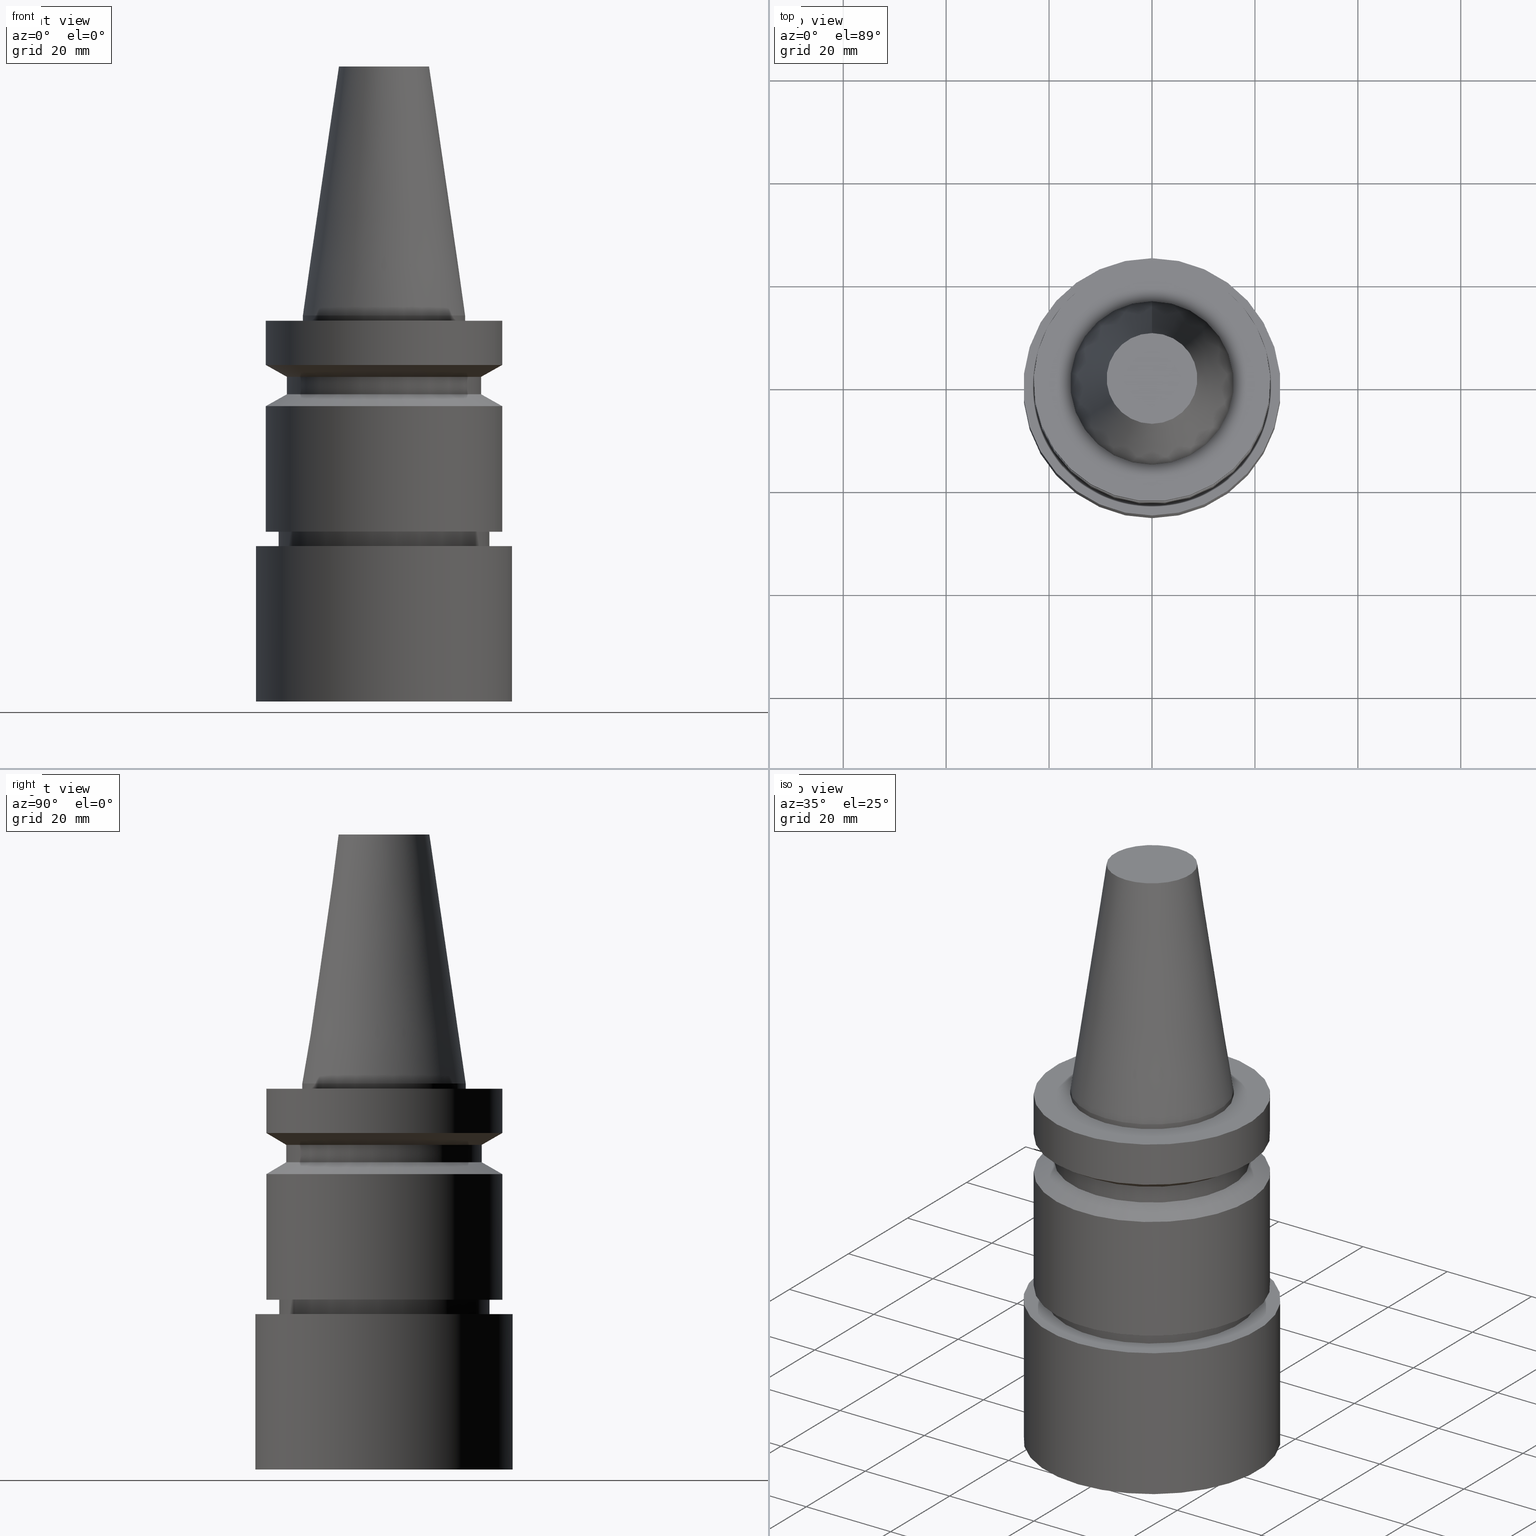
[diagram: canonical four-view strip — front | top / right | iso, engineering-drawing reading convention]
A machine part, canonical four-view strip (front | top / right | iso — engineering-drawing reading convention). The complete STEP part file that produces these views, byte-faithful:
ISO-10303-21;
HEADER;
FILE_DESCRIPTION((''),'1');
FILE_NAME('V:/90_\X2\53D65F9730C730FC30BF\X0\/00_\X2\6DE18DEF30C730FC30BF\X0\/ALL/BBT-BKUS\X2\FF76FF80FF9BFF78FF9E752852A05DE556F3\X0\201801/BBT30-MEGAER/BBT30-MEGAER32-75NL.stp','2018-02-02T07:32:38',(''),(''),'Spatial Interop R21 SP3','Kubotek KeyCreator 2011 V10.0.2 (22737)',' ');
FILE_SCHEMA(('automotive_design'));
ENDSEC;
DATA;
#1=MECHANICAL_DESIGN_GEOMETRIC_PRESENTATION_REPRESENTATION(' ',(#14,#15,#16,#17,#18,#19,#20,#21,#22,#23,#24,#25,#26,#27,#28,#29,#30,#31,#32,#33,#34,#35,#36,#37,#38,#39,#40,#41,#42,#43,#44,#45,#46,#47,#48,#49),#10);
#2=PRODUCT_DEFINITION_CONTEXT('',#50,'design');
#3=APPLICATION_PROTOCOL_DEFINITION('INTERNATIONAL STANDARD','automotive_design',1994,#50);
#4=PRODUCT_CATEGORY_RELATIONSHIP('NONE','NONE',#51,#52);
#5=SHAPE_DEFINITION_REPRESENTATION(#53,#54);
#6=PRODUCT_DEFINITION_CONTEXT('',#55,'design');
#7=APPLICATION_PROTOCOL_DEFINITION('INTERNATIONAL STANDARD','automotive_design',1994,#55);
#8=PRODUCT_CATEGORY_RELATIONSHIP('NONE','NONE',#56,#57);
#9=SHAPE_DEFINITION_REPRESENTATION(#58,#59);
#10= (GEOMETRIC_REPRESENTATION_CONTEXT(3)GLOBAL_UNCERTAINTY_ASSIGNED_CONTEXT((#62))GLOBAL_UNIT_ASSIGNED_CONTEXT((#64,#65,#66))REPRESENTATION_CONTEXT('NONE','WORKSPACE'));
#14=STYLED_ITEM('',(#68),#69);
#15=STYLED_ITEM('',(#70,#71),#72);
#16=STYLED_ITEM('',(#73),#74);
#17=STYLED_ITEM('',(#75,#76),#77);
#18=STYLED_ITEM('',(#78),#79);
#19=STYLED_ITEM('',(#80),#81);
#20=STYLED_ITEM('',(#82,#83),#84);
#21=STYLED_ITEM('',(#85,#86),#87);
#22=STYLED_ITEM('',(#88,#89),#90);
#23=STYLED_ITEM('',(#91),#92);
#24=STYLED_ITEM('',(#93),#94);
#25=STYLED_ITEM('',(#95),#96);
#26=STYLED_ITEM('',(#97),#98);
#27=STYLED_ITEM('',(#99,#100),#101);
#28=STYLED_ITEM('',(#102),#103);
#29=STYLED_ITEM('',(#104),#105);
#30=STYLED_ITEM('',(#106,#107),#108);
#31=STYLED_ITEM('',(#109),#110);
#32=STYLED_ITEM('',(#111),#112);
#33=STYLED_ITEM('',(#113,#114),#115);
#34=STYLED_ITEM('',(#116,#117),#118);
#35=STYLED_ITEM('',(#119,#120),#121);
#36=STYLED_ITEM('',(#122,#123),#124);
#37=STYLED_ITEM('',(#125,#126),#127);
#38=STYLED_ITEM('',(#128,#129),#130);
#39=STYLED_ITEM('',(#131,#132),#133);
#40=STYLED_ITEM('',(#134,#135),#136);
#41=STYLED_ITEM('',(#137),#138);
#42=STYLED_ITEM('',(#139,#140),#141);
#43=STYLED_ITEM('',(#142),#143);
#44=STYLED_ITEM('',(#144,#145),#146);
#45=STYLED_ITEM('',(#147),#148);
#46=STYLED_ITEM('',(#149,#150),#151);
#47=STYLED_ITEM('',(#152,#153),#154);
#48=STYLED_ITEM('',(#155),#156);
#49=STYLED_ITEM('',(#157,#158),#159);
#50=APPLICATION_CONTEXT(' ');
#51=PRODUCT_CATEGORY('part','NONE');
#52=PRODUCT_RELATED_PRODUCT_CATEGORY('detail',' ',(#160));
#53=PRODUCT_DEFINITION_SHAPE('NONE','NONE',#161);
#54=ADVANCED_BREP_SHAPE_REPRESENTATION('Unnamed[1]',(#154,#162),#10);
#55=APPLICATION_CONTEXT(' ');
#56=PRODUCT_CATEGORY('part','NONE');
#57=PRODUCT_RELATED_PRODUCT_CATEGORY('detail',' ',(#163));
#58=PRODUCT_DEFINITION_SHAPE('NONE','NONE',#164);
#59=ADVANCED_BREP_SHAPE_REPRESENTATION('Unnamed[1]',(#141,#165),#10);
#62=UNCERTAINTY_MEASURE_WITH_UNIT(LENGTH_MEASURE(1.0E-006),#64,'','');
#64= (CONVERSION_BASED_UNIT('MILLIMETRE',#168)LENGTH_UNIT()NAMED_UNIT(#171));
#65= (NAMED_UNIT(#173)PLANE_ANGLE_UNIT()SI_UNIT($,.RADIAN.));
#66= (NAMED_UNIT(#173)SOLID_ANGLE_UNIT()SI_UNIT($,.STERADIAN.));
#68=PRESENTATION_STYLE_ASSIGNMENT((#179));
#69=EDGE_CURVE('Unnamed[1]',#180,#180,#181,.T.);
#70=PRESENTATION_STYLE_ASSIGNMENT((#182));
#71=PRESENTATION_STYLE_ASSIGNMENT((#183));
#72=ADVANCED_FACE('Unnamed[1]',(#184,#185),#186,.T.);
#73=PRESENTATION_STYLE_ASSIGNMENT((#187));
#74=EDGE_CURVE('Unnamed[1]',#188,#188,#189,.T.);
#75=PRESENTATION_STYLE_ASSIGNMENT((#190));
#76=PRESENTATION_STYLE_ASSIGNMENT((#191));
#77=ADVANCED_FACE('Unnamed[1]',(#192,#193),#194,.T.);
#78=PRESENTATION_STYLE_ASSIGNMENT((#195));
#79=EDGE_CURVE('Unnamed[1]',#196,#196,#197,.T.);
#80=PRESENTATION_STYLE_ASSIGNMENT((#198));
#81=EDGE_CURVE('Unnamed[1]',#199,#199,#200,.T.);
#82=PRESENTATION_STYLE_ASSIGNMENT((#201));
#83=PRESENTATION_STYLE_ASSIGNMENT((#202));
#84=ADVANCED_FACE('Unnamed[1]',(#203),#204,.T.);
#85=PRESENTATION_STYLE_ASSIGNMENT((#205));
#86=PRESENTATION_STYLE_ASSIGNMENT((#206));
#87=ADVANCED_FACE('Unnamed[1]',(#207,#208),#209,.T.);
#88=PRESENTATION_STYLE_ASSIGNMENT((#210));
#89=PRESENTATION_STYLE_ASSIGNMENT((#211));
#90=ADVANCED_FACE('Unnamed[1]',(#212,#213),#214,.T.);
#91=PRESENTATION_STYLE_ASSIGNMENT((#215));
#92=EDGE_CURVE('Unnamed[1]',#216,#216,#217,.T.);
#93=PRESENTATION_STYLE_ASSIGNMENT((#218));
#94=EDGE_CURVE('Unnamed[1]',#219,#219,#220,.T.);
#95=PRESENTATION_STYLE_ASSIGNMENT((#221));
#96=EDGE_CURVE('Unnamed[1]',#222,#222,#223,.T.);
#97=PRESENTATION_STYLE_ASSIGNMENT((#224));
#98=EDGE_CURVE('Unnamed[1]',#225,#225,#226,.T.);
#99=PRESENTATION_STYLE_ASSIGNMENT((#227));
#100=PRESENTATION_STYLE_ASSIGNMENT((#228));
#101=ADVANCED_FACE('Unnamed[1]',(#229,#230),#231,.T.);
#102=PRESENTATION_STYLE_ASSIGNMENT((#232));
#103=EDGE_CURVE('Unnamed[1]',#233,#233,#234,.T.);
#104=PRESENTATION_STYLE_ASSIGNMENT((#235));
#105=EDGE_CURVE('Unnamed[1]',#236,#236,#237,.T.);
#106=PRESENTATION_STYLE_ASSIGNMENT((#238));
#107=PRESENTATION_STYLE_ASSIGNMENT((#239));
#108=ADVANCED_FACE('Unnamed[1]',(#240,#241),#242,.T.);
#109=PRESENTATION_STYLE_ASSIGNMENT((#243));
#110=EDGE_CURVE('Unnamed[1]',#244,#244,#245,.T.);
#111=PRESENTATION_STYLE_ASSIGNMENT((#246));
#112=EDGE_CURVE('Unnamed[1]',#247,#247,#248,.T.);
#113=PRESENTATION_STYLE_ASSIGNMENT((#249));
#114=PRESENTATION_STYLE_ASSIGNMENT((#250));
#115=ADVANCED_FACE('Unnamed[1]',(#251,#252),#253,.T.);
#116=PRESENTATION_STYLE_ASSIGNMENT((#254));
#117=PRESENTATION_STYLE_ASSIGNMENT((#255));
#118=ADVANCED_FACE('Unnamed[1]',(#256,#257),#258,.T.);
#119=PRESENTATION_STYLE_ASSIGNMENT((#259));
#120=PRESENTATION_STYLE_ASSIGNMENT((#260));
#121=ADVANCED_FACE('Unnamed[1]',(#261,#262),#263,.T.);
#122=PRESENTATION_STYLE_ASSIGNMENT((#264));
#123=PRESENTATION_STYLE_ASSIGNMENT((#265));
#124=ADVANCED_FACE('Unnamed[1]',(#266,#267),#268,.T.);
#125=PRESENTATION_STYLE_ASSIGNMENT((#269));
#126=PRESENTATION_STYLE_ASSIGNMENT((#270));
#127=ADVANCED_FACE('Unnamed[1]',(#271,#272),#273,.T.);
#128=PRESENTATION_STYLE_ASSIGNMENT((#274));
#129=PRESENTATION_STYLE_ASSIGNMENT((#275));
#130=ADVANCED_FACE('Unnamed[1]',(#276,#277),#278,.T.);
#131=PRESENTATION_STYLE_ASSIGNMENT((#279));
#132=PRESENTATION_STYLE_ASSIGNMENT((#280));
#133=ADVANCED_FACE('Unnamed[1]',(#281,#282),#283,.T.);
#134=PRESENTATION_STYLE_ASSIGNMENT((#284));
#135=PRESENTATION_STYLE_ASSIGNMENT((#285));
#136=ADVANCED_FACE('Unnamed[1]',(#286),#287,.T.);
#137=PRESENTATION_STYLE_ASSIGNMENT((#288));
#138=EDGE_CURVE('Unnamed[1]',#289,#289,#290,.T.);
#139=PRESENTATION_STYLE_ASSIGNMENT((#291));
#140=PRESENTATION_STYLE_ASSIGNMENT((#292));
#141=MANIFOLD_SOLID_BREP('Unnamed[1]',#293);
#142=PRESENTATION_STYLE_ASSIGNMENT((#294));
#143=EDGE_CURVE('Unnamed[1]',#295,#295,#296,.T.);
#144=PRESENTATION_STYLE_ASSIGNMENT((#297));
#145=PRESENTATION_STYLE_ASSIGNMENT((#298));
#146=ADVANCED_FACE('Unnamed[1]',(#299),#300,.T.);
#147=PRESENTATION_STYLE_ASSIGNMENT((#301));
#148=EDGE_CURVE('Unnamed[1]',#302,#302,#303,.T.);
#149=PRESENTATION_STYLE_ASSIGNMENT((#304));
#150=PRESENTATION_STYLE_ASSIGNMENT((#305));
#151=ADVANCED_FACE('Unnamed[1]',(#306,#307),#308,.T.);
#152=PRESENTATION_STYLE_ASSIGNMENT((#309));
#153=PRESENTATION_STYLE_ASSIGNMENT((#310));
#154=MANIFOLD_SOLID_BREP('Unnamed[1]',#311);
#155=PRESENTATION_STYLE_ASSIGNMENT((#312));
#156=EDGE_CURVE('Unnamed[1]',#313,#313,#314,.T.);
#157=PRESENTATION_STYLE_ASSIGNMENT((#315));
#158=PRESENTATION_STYLE_ASSIGNMENT((#316));
#159=ADVANCED_FACE('Unnamed[1]',(#317),#318,.T.);
#160=PRODUCT('Unnamed[1]','Unnamed[1]','PART-Unnamed[1]-DESC',(#319));
#161=PRODUCT_DEFINITION('NONE','NONE',#320,#2);
#162=AXIS2_PLACEMENT_3D('',#321,#322,#323);
#163=PRODUCT('Unnamed[1]','Unnamed[1]','PART-Unnamed[1]-DESC',(#324));
#164=PRODUCT_DEFINITION('NONE','NONE',#325,#6);
#165=AXIS2_PLACEMENT_3D('',#326,#327,#328);
#168=LENGTH_MEASURE_WITH_UNIT(LENGTH_MEASURE(1.0),#329);
#171=DIMENSIONAL_EXPONENTS(1.0,0.0,0.0,0.0,0.0,0.0,0.0);
#173=DIMENSIONAL_EXPONENTS(0.0,0.0,0.0,0.0,0.0,0.0,0.0);
#179=CURVE_STYLE('',#330,POSITIVE_LENGTH_MEASURE(1000.0),#331);
#180=VERTEX_POINT('',#332);
#181=CIRCLE('',#333,23.0);
#182=SURFACE_STYLE_USAGE(.BOTH.,#334);
#183=CURVE_STYLE('',#335,POSITIVE_LENGTH_MEASURE(1000.0),#336);
#184=FACE_BOUND('',#337,.T.);
#185=FACE_BOUND('',#338,.T.);
#186=CONICAL_SURFACE('',#339,21.0,1.04719755058882);
#187=CURVE_STYLE('',#340,POSITIVE_LENGTH_MEASURE(1000.0),#341);
#188=VERTEX_POINT('',#342);
#189=CIRCLE('',#343,15.875);
#190=SURFACE_STYLE_USAGE(.BOTH.,#344);
#191=CURVE_STYLE('',#345,POSITIVE_LENGTH_MEASURE(1000.0),#346);
#192=FACE_BOUND('',#347,.T.);
#193=FACE_BOUND('',#348,.T.);
#194=CYLINDRICAL_SURFACE('',#349,19.0);
#195=CURVE_STYLE('',#350,POSITIVE_LENGTH_MEASURE(1000.0),#351);
#196=VERTEX_POINT('',#352);
#197=CIRCLE('',#353,20.5000000000012);
#198=CURVE_STYLE('',#354,POSITIVE_LENGTH_MEASURE(1000.0),#355);
#199=VERTEX_POINT('',#356);
#200=CIRCLE('',#357,18.8999999999996);
#201=SURFACE_STYLE_USAGE(.BOTH.,#358);
#202=CURVE_STYLE('',#359,POSITIVE_LENGTH_MEASURE(1000.0),#360);
#203=FACE_OUTER_BOUND('',#361,.T.);
#204=PLANE('',#362);
#205=SURFACE_STYLE_USAGE(.BOTH.,#363);
#206=CURVE_STYLE('',#364,POSITIVE_LENGTH_MEASURE(1000.0),#365);
#207=FACE_BOUND('',#366,.T.);
#208=FACE_BOUND('',#367,.T.);
#209=CYLINDRICAL_SURFACE('',#368,25.0);
#210=SURFACE_STYLE_USAGE(.BOTH.,#369);
#211=CURVE_STYLE('',#370,POSITIVE_LENGTH_MEASURE(1000.0),#371);
#212=FACE_BOUND('',#372,.T.);
#213=FACE_BOUND('',#373,.T.);
#214=CYLINDRICAL_SURFACE('',#374,15.875);
#215=CURVE_STYLE('',#375,POSITIVE_LENGTH_MEASURE(1000.0),#376);
#216=VERTEX_POINT('',#377);
#217=CIRCLE('',#378,23.0);
#218=CURVE_STYLE('',#379,POSITIVE_LENGTH_MEASURE(1000.0),#380);
#219=VERTEX_POINT('',#381);
#220=CIRCLE('',#382,23.0);
#221=CURVE_STYLE('',#383,POSITIVE_LENGTH_MEASURE(1000.0),#384);
#222=VERTEX_POINT('',#385);
#223=CIRCLE('',#386,20.0);
#224=CURVE_STYLE('',#387,POSITIVE_LENGTH_MEASURE(1000.0),#388);
#225=VERTEX_POINT('',#389);
#226=CIRCLE('',#390,19.0);
#227=SURFACE_STYLE_USAGE(.BOTH.,#391);
#228=CURVE_STYLE('',#392,POSITIVE_LENGTH_MEASURE(1000.0),#393);
#229=FACE_BOUND('',#394,.T.);
#230=FACE_BOUND('',#395,.T.);
#231=CYLINDRICAL_SURFACE('',#396,20.0000000000001);
#232=CURVE_STYLE('',#397,POSITIVE_LENGTH_MEASURE(1000.0),#398);
#233=VERTEX_POINT('',#399);
#234=CIRCLE('',#400,20.0000000000001);
#235=CURVE_STYLE('',#401,POSITIVE_LENGTH_MEASURE(1000.0),#402);
#236=VERTEX_POINT('',#403);
#237=CIRCLE('',#404,25.0);
#238=SURFACE_STYLE_USAGE(.BOTH.,#405);
#239=CURVE_STYLE('',#406,POSITIVE_LENGTH_MEASURE(1000.0),#407);
#240=FACE_BOUND('',#408,.T.);
#241=FACE_BOUND('',#409,.T.);
#242=CONICAL_SURFACE('',#410,12.3457500009933,0.144815870013618);
#243=CURVE_STYLE('',#411,POSITIVE_LENGTH_MEASURE(1000.0),#412);
#244=VERTEX_POINT('',#413);
#245=CIRCLE('',#414,15.875);
#246=CURVE_STYLE('',#415,POSITIVE_LENGTH_MEASURE(1000.0),#416);
#247=VERTEX_POINT('',#417);
#248=CIRCLE('',#418,19.0);
#249=SURFACE_STYLE_USAGE(.BOTH.,#419);
#250=CURVE_STYLE('',#420,POSITIVE_LENGTH_MEASURE(1000.0),#421);
#251=FACE_BOUND('',#422,.T.);
#252=FACE_BOUND('',#423,.T.);
#253=CONICAL_SURFACE('',#424,21.0,1.04719755058881);
#254=SURFACE_STYLE_USAGE(.BOTH.,#425);
#255=CURVE_STYLE('',#426,POSITIVE_LENGTH_MEASURE(1000.0),#427);
#256=FACE_BOUND('',#428,.T.);
#257=FACE_BOUND('',#429,.T.);
#258=CONICAL_SURFACE('',#430,20.2500000000006,1.04719755120247);
#259=SURFACE_STYLE_USAGE(.BOTH.,#431);
#260=CURVE_STYLE('',#432,POSITIVE_LENGTH_MEASURE(1000.0),#433);
#261=FACE_OUTER_BOUND('',#434,.T.);
#262=FACE_BOUND('',#435,.T.);
#263=PLANE('',#436);
#264=SURFACE_STYLE_USAGE(.BOTH.,#437);
#265=CURVE_STYLE('',#438,POSITIVE_LENGTH_MEASURE(1000.0),#439);
#266=FACE_BOUND('',#440,.T.);
#267=FACE_BOUND('',#441,.T.);
#268=CYLINDRICAL_SURFACE('',#442,23.0);
#269=SURFACE_STYLE_USAGE(.BOTH.,#443);
#270=CURVE_STYLE('',#444,POSITIVE_LENGTH_MEASURE(1000.0),#445);
#271=FACE_BOUND('',#446,.T.);
#272=FACE_BOUND('',#447,.T.);
#273=CYLINDRICAL_SURFACE('',#448,20.4999999999961);
#274=SURFACE_STYLE_USAGE(.BOTH.,#449);
#275=CURVE_STYLE('',#450,POSITIVE_LENGTH_MEASURE(1000.0),#451);
#276=FACE_BOUND('',#452,.T.);
#277=FACE_OUTER_BOUND('',#453,.T.);
#278=PLANE('',#454);
#279=SURFACE_STYLE_USAGE(.BOTH.,#455);
#280=CURVE_STYLE('',#456,POSITIVE_LENGTH_MEASURE(1000.0),#457);
#281=FACE_BOUND('',#458,.T.);
#282=FACE_BOUND('',#459,.T.);
#283=CYLINDRICAL_SURFACE('',#460,23.0);
#284=SURFACE_STYLE_USAGE(.BOTH.,#461);
#285=CURVE_STYLE('',#462,POSITIVE_LENGTH_MEASURE(1000.0),#463);
#286=FACE_OUTER_BOUND('',#464,.T.);
#287=PLANE('',#465);
#288=CURVE_STYLE('',#466,POSITIVE_LENGTH_MEASURE(1000.0),#467);
#289=VERTEX_POINT('',#468);
#290=CIRCLE('',#469,25.0);
#291=SURFACE_STYLE_USAGE(.BOTH.,#470);
#292=CURVE_STYLE('',#471,POSITIVE_LENGTH_MEASURE(1000.0),#472);
#293=CLOSED_SHELL('',(#146,#84,#87));
#294=CURVE_STYLE('',#473,POSITIVE_LENGTH_MEASURE(1000.0),#474);
#295=VERTEX_POINT('',#475);
#296=CIRCLE('',#476,20.4999999999911);
#297=SURFACE_STYLE_USAGE(.BOTH.,#477);
#298=CURVE_STYLE('',#478,POSITIVE_LENGTH_MEASURE(1000.0),#479);
#299=FACE_OUTER_BOUND('',#480,.T.);
#300=PLANE('',#481);
#301=CURVE_STYLE('',#482,POSITIVE_LENGTH_MEASURE(1000.0),#483);
#302=VERTEX_POINT('',#484);
#303=CIRCLE('',#485,23.0);
#304=SURFACE_STYLE_USAGE(.BOTH.,#486);
#305=CURVE_STYLE('',#487,POSITIVE_LENGTH_MEASURE(1000.0),#488);
#306=FACE_BOUND('',#489,.T.);
#307=FACE_BOUND('',#490,.T.);
#308=CONICAL_SURFACE('',#491,19.4499999999998,0.52359877559822);
#309=SURFACE_STYLE_USAGE(.BOTH.,#492);
#310=CURVE_STYLE('',#493,POSITIVE_LENGTH_MEASURE(1000.0),#494);
#311=CLOSED_SHELL('',(#136,#108,#90,#121,#124,#115,#77,#72,#133,#130,#127,#118,#101,#151,#159));
#312=CURVE_STYLE('',#495,POSITIVE_LENGTH_MEASURE(1000.0),#496);
#313=VERTEX_POINT('',#497);
#314=CIRCLE('',#498,8.81650000198669);
#315=SURFACE_STYLE_USAGE(.BOTH.,#499);
#316=CURVE_STYLE('',#500,POSITIVE_LENGTH_MEASURE(1000.0),#501);
#317=FACE_OUTER_BOUND('',#502,.T.);
#318=PLANE('',#503);
#319=PRODUCT_CONTEXT('',#50,'mechanical');
#320=PRODUCT_DEFINITION_FORMATION_WITH_SPECIFIED_SOURCE(' ','NONE',#160,.NOT_KNOWN.);
#321=CARTESIAN_POINT('',(0.0,0.0,0.0));
#322=DIRECTION('',(0.0,0.0,1.0));
#323=DIRECTION('',(1.0,0.0,0.0));
#324=PRODUCT_CONTEXT('',#55,'mechanical');
#325=PRODUCT_DEFINITION_FORMATION_WITH_SPECIFIED_SOURCE(' ','NONE',#163,.NOT_KNOWN.);
#326=CARTESIAN_POINT('',(0.0,0.0,0.0));
#327=DIRECTION('',(0.0,0.0,1.0));
#328=DIRECTION('',(1.0,0.0,0.0));
#329= (NAMED_UNIT(#171)LENGTH_UNIT()SI_UNIT(.MILLI.,.METRE.));
#330=DRAUGHTING_PRE_DEFINED_CURVE_FONT('continuous');
#331=COLOUR_RGB('',0.0,1.0,0.0);
#332=CARTESIAN_POINT('',(5.87830463590729E-016,23.0,-9.59999999999999));
#333=AXIS2_PLACEMENT_3D('',#505,#506,#507);
#334=SURFACE_SIDE_STYLE('',(#508));
#335=DRAUGHTING_PRE_DEFINED_CURVE_FONT('continuous');
#336=COLOUR_RGB('',0.0,1.0,0.0);
#337=EDGE_LOOP('',(#509));
#338=EDGE_LOOP('',(#510));
#339=AXIS2_PLACEMENT_3D('',#511,#512,#513);
#340=DRAUGHTING_PRE_DEFINED_CURVE_FONT('continuous');
#341=COLOUR_RGB('',0.0,1.0,0.0);
#342=CARTESIAN_POINT('',(6.12323399573675E-017,15.875,-0.999999999999998));
#343=AXIS2_PLACEMENT_3D('',#514,#515,#516);
#344=SURFACE_SIDE_STYLE('',(#517));
#345=DRAUGHTING_PRE_DEFINED_CURVE_FONT('continuous');
#346=COLOUR_RGB('',0.0,1.0,0.0);
#347=EDGE_LOOP('',(#518));
#348=EDGE_LOOP('',(#519));
#349=AXIS2_PLACEMENT_3D('',#520,#521,#522);
#350=DRAUGHTING_PRE_DEFINED_CURVE_FONT('continuous');
#351=COLOUR_RGB('',0.0,1.0,0.0);
#352=CARTESIAN_POINT('',(2.95210188229639E-015,20.5000000000012,-48.211482434801));
#353=AXIS2_PLACEMENT_3D('',#523,#524,#525);
#354=DRAUGHTING_PRE_DEFINED_CURVE_FONT('continuous');
#355=COLOUR_RGB('',0.0,1.0,0.0);
#356=CARTESIAN_POINT('',(3.91886975727155E-015,18.8999999999996,-64.0000000000003));
#357=AXIS2_PLACEMENT_3D('',#526,#527,#528);
#358=SURFACE_SIDE_STYLE('',(#529));
#359=DRAUGHTING_PRE_DEFINED_CURVE_FONT('continuous');
#360=COLOUR_RGB('',0.0,1.0,0.0);
#361=EDGE_LOOP('',(#530));
#362=AXIS2_PLACEMENT_3D('',#531,#532,#533);
#363=SURFACE_SIDE_STYLE('',(#534));
#364=DRAUGHTING_PRE_DEFINED_CURVE_FONT('continuous');
#365=COLOUR_RGB('',0.0,1.0,0.0);
#366=EDGE_LOOP('',(#535));
#367=EDGE_LOOP('',(#536));
#368=AXIS2_PLACEMENT_3D('',#537,#538,#539);
#369=SURFACE_SIDE_STYLE('',(#540));
#370=DRAUGHTING_PRE_DEFINED_CURVE_FONT('continuous');
#371=COLOUR_RGB('',0.0,1.0,0.0);
#372=EDGE_LOOP('',(#541));
#373=EDGE_LOOP('',(#542));
#374=AXIS2_PLACEMENT_3D('',#543,#544,#545);
#375=DRAUGHTING_PRE_DEFINED_CURVE_FONT('continuous');
#376=COLOUR_RGB('',0.0,1.0,0.0);
#377=CARTESIAN_POINT('',(2.57176792655277E-015,23.0,-42.0001575694042));
#378=AXIS2_PLACEMENT_3D('',#546,#547,#548);
#379=DRAUGHTING_PRE_DEFINED_CURVE_FONT('continuous');
#380=COLOUR_RGB('',0.0,1.0,0.0);
#381=CARTESIAN_POINT('',(1.07768918324967E-015,23.0,-17.6));
#382=AXIS2_PLACEMENT_3D('',#549,#550,#551);
#383=DRAUGHTING_PRE_DEFINED_CURVE_FONT('continuous');
#384=COLOUR_RGB('',0.0,1.0,0.0);
#385=CARTESIAN_POINT('',(2.96977813627494E-015,20.0,-48.5001575693926));
#386=AXIS2_PLACEMENT_3D('',#552,#553,#554);
#387=DRAUGHTING_PRE_DEFINED_CURVE_FONT('continuous');
#388=COLOUR_RGB('',0.0,1.0,0.0);
#389=CARTESIAN_POINT('',(7.29240495619202E-016,19.0,-11.90940108));
#390=AXIS2_PLACEMENT_3D('',#555,#556,#557);
#391=SURFACE_SIDE_STYLE('',(#558));
#392=DRAUGHTING_PRE_DEFINED_CURVE_FONT('continuous');
#393=COLOUR_RGB('',0.0,1.0,0.0);
#394=EDGE_LOOP('',(#559));
#395=EDGE_LOOP('',(#560));
#396=AXIS2_PLACEMENT_3D('',#561,#562,#563);
#397=DRAUGHTING_PRE_DEFINED_CURVE_FONT('continuous');
#398=COLOUR_RGB('',0.0,1.0,0.0);
#399=CARTESIAN_POINT('',(3.80220648101174E-015,20.0000000000001,-62.0947441116734));
#400=AXIS2_PLACEMENT_3D('',#564,#565,#566);
#401=DRAUGHTING_PRE_DEFINED_CURVE_FONT('continuous');
#402=COLOUR_RGB('',0.0,1.0,0.0);
#403=CARTESIAN_POINT('',(2.74320883009007E-015,25.0,-44.8));
#404=AXIS2_PLACEMENT_3D('',#567,#568,#569);
#405=SURFACE_SIDE_STYLE('',(#570));
#406=DRAUGHTING_PRE_DEFINED_CURVE_FONT('continuous');
#407=COLOUR_RGB('',0.0,1.0,0.0);
#408=EDGE_LOOP('',(#571));
#409=EDGE_LOOP('',(#572));
#410=AXIS2_PLACEMENT_3D('',#573,#574,#575);
#411=DRAUGHTING_PRE_DEFINED_CURVE_FONT('continuous');
#412=COLOUR_RGB('',0.0,1.0,0.0);
#413=CARTESIAN_POINT('',(-1.95674482349743E-031,15.875,1.94412679364642E-015));
#414=AXIS2_PLACEMENT_3D('',#576,#577,#578);
#415=DRAUGHTING_PRE_DEFINED_CURVE_FONT('continuous');
#416=COLOUR_RGB('',0.0,1.0,0.0);
#417=CARTESIAN_POINT('',(9.36279151221199E-016,19.0,-15.29059892));
#418=AXIS2_PLACEMENT_3D('',#579,#580,#581);
#419=SURFACE_SIDE_STYLE('',(#582));
#420=DRAUGHTING_PRE_DEFINED_CURVE_FONT('continuous');
#421=COLOUR_RGB('',0.0,1.0,0.0);
#422=EDGE_LOOP('',(#583));
#423=EDGE_LOOP('',(#584));
#424=AXIS2_PLACEMENT_3D('',#585,#586,#587);
#425=SURFACE_SIDE_STYLE('',(#588));
#426=DRAUGHTING_PRE_DEFINED_CURVE_FONT('continuous');
#427=COLOUR_RGB('',0.0,1.0,0.0);
#428=EDGE_LOOP('',(#589));
#429=EDGE_LOOP('',(#590));
#430=AXIS2_PLACEMENT_3D('',#591,#592,#593);
#431=SURFACE_SIDE_STYLE('',(#594));
#432=DRAUGHTING_PRE_DEFINED_CURVE_FONT('continuous');
#433=COLOUR_RGB('',0.0,1.0,0.0);
#434=EDGE_LOOP('',(#595));
#435=EDGE_LOOP('',(#596));
#436=AXIS2_PLACEMENT_3D('',#597,#598,#599);
#437=SURFACE_SIDE_STYLE('',(#600));
#438=DRAUGHTING_PRE_DEFINED_CURVE_FONT('continuous');
#439=COLOUR_RGB('',0.0,1.0,0.0);
#440=EDGE_LOOP('',(#601));
#441=EDGE_LOOP('',(#602));
#442=AXIS2_PLACEMENT_3D('',#603,#604,#605);
#443=SURFACE_SIDE_STYLE('',(#606));
#444=DRAUGHTING_PRE_DEFINED_CURVE_FONT('continuous');
#445=COLOUR_RGB('',0.0,1.0,0.0);
#446=EDGE_LOOP('',(#607));
#447=EDGE_LOOP('',(#608));
#448=AXIS2_PLACEMENT_3D('',#609,#610,#611);
#449=SURFACE_SIDE_STYLE('',(#612));
#450=DRAUGHTING_PRE_DEFINED_CURVE_FONT('continuous');
#451=COLOUR_RGB('',0.0,1.0,0.0);
#452=EDGE_LOOP('',(#613));
#453=EDGE_LOOP('',(#614));
#454=AXIS2_PLACEMENT_3D('',#615,#616,#617);
#455=SURFACE_SIDE_STYLE('',(#618));
#456=DRAUGHTING_PRE_DEFINED_CURVE_FONT('continuous');
#457=COLOUR_RGB('',0.0,1.0,0.0);
#458=EDGE_LOOP('',(#619));
#459=EDGE_LOOP('',(#620));
#460=AXIS2_PLACEMENT_3D('',#621,#622,#623);
#461=SURFACE_SIDE_STYLE('',(#624));
#462=DRAUGHTING_PRE_DEFINED_CURVE_FONT('continuous');
#463=COLOUR_RGB('',0.0,1.0,0.0);
#464=EDGE_LOOP('',(#625));
#465=AXIS2_PLACEMENT_3D('',#626,#627,#628);
#466=DRAUGHTING_PRE_DEFINED_CURVE_FONT('continuous');
#467=COLOUR_RGB('',0.0,1.0,0.0);
#468=CARTESIAN_POINT('',(4.59242549680257E-015,25.0,-75.0));
#469=AXIS2_PLACEMENT_3D('',#629,#630,#631);
#470=SURFACE_SIDE_STYLE('',(#632));
#471=DRAUGHTING_PRE_DEFINED_CURVE_FONT('continuous');
#472=COLOUR_RGB('',0.0,1.0,0.0);
#473=DRAUGHTING_PRE_DEFINED_CURVE_FONT('continuous');
#474=COLOUR_RGB('',0.0,1.0,0.0);
#475=CARTESIAN_POINT('',(2.57176792655278E-015,20.4999999999911,-42.0001575694044));
#476=AXIS2_PLACEMENT_3D('',#633,#634,#635);
#477=SURFACE_SIDE_STYLE('',(#636));
#478=DRAUGHTING_PRE_DEFINED_CURVE_FONT('continuous');
#479=COLOUR_RGB('',0.0,1.0,0.0);
#480=EDGE_LOOP('',(#637));
#481=AXIS2_PLACEMENT_3D('',#638,#639,#640);
#482=DRAUGHTING_PRE_DEFINED_CURVE_FONT('continuous');
#483=COLOUR_RGB('',0.0,1.0,0.0);
#484=CARTESIAN_POINT('',(6.12323399573674E-017,23.0,-0.999999999999997));
#485=AXIS2_PLACEMENT_3D('',#641,#642,#643);
#486=SURFACE_SIDE_STYLE('',(#644));
#487=DRAUGHTING_PRE_DEFINED_CURVE_FONT('continuous');
#488=COLOUR_RGB('',0.0,1.0,0.0);
#489=EDGE_LOOP('',(#645));
#490=EDGE_LOOP('',(#646));
#491=AXIS2_PLACEMENT_3D('',#647,#648,#649);
#492=SURFACE_SIDE_STYLE('',(#650));
#493=DRAUGHTING_PRE_DEFINED_CURVE_FONT('continuous');
#494=COLOUR_RGB('',0.0,1.0,0.0);
#495=DRAUGHTING_PRE_DEFINED_CURVE_FONT('continuous');
#496=COLOUR_RGB('',0.0,1.0,0.0);
#497=CARTESIAN_POINT('',(-2.96364525393659E-015,8.81650000198669,48.4));
#498=AXIS2_PLACEMENT_3D('',#651,#652,#653);
#499=SURFACE_SIDE_STYLE('',(#654));
#500=DRAUGHTING_PRE_DEFINED_CURVE_FONT('continuous');
#501=COLOUR_RGB('',0.0,1.0,0.0);
#502=EDGE_LOOP('',(#655));
#503=AXIS2_PLACEMENT_3D('',#656,#657,#658);
#505=CARTESIAN_POINT('',(5.87830463590729E-016,1.17566092718146E-015,-9.59999999999999));
#506=DIRECTION('',(6.12323399573677E-017,1.22464679914735E-016,-1.0));
#507=DIRECTION('',(-1.23259516440783E-032,1.0,1.22464679914735E-016));
#508=SURFACE_STYLE_FILL_AREA(#659);
#509=ORIENTED_EDGE('',*,*,#94,.F.);
#510=ORIENTED_EDGE('',*,*,#112,.T.);
#511=CARTESIAN_POINT('',(1.00698416723543E-015,2.01396833447087E-015,-16.44529946));
#512=DIRECTION('',(6.12323399573677E-017,1.22464679914735E-016,-1.0));
#513=DIRECTION('',(-1.23259516440783E-032,1.0,1.22464679914735E-016));
#514=CARTESIAN_POINT('',(6.12323399573677E-017,1.22464679914735E-016,-1.0));
#515=DIRECTION('',(6.12323399573677E-017,1.22464679914735E-016,-1.0));
#516=DIRECTION('',(-1.23259516440783E-032,1.0,1.22464679914735E-016));
#517=SURFACE_STYLE_FILL_AREA(#660);
#518=ORIENTED_EDGE('',*,*,#112,.F.);
#519=ORIENTED_EDGE('',*,*,#98,.T.);
#520=CARTESIAN_POINT('',(8.32759823420201E-016,1.6655196468404E-015,-13.6));
#521=DIRECTION('',(6.12323399573677E-017,1.22464679914735E-016,-1.0));
#522=DIRECTION('',(-1.23259516440783E-032,1.0,1.22464679914735E-016));
#523=CARTESIAN_POINT('',(2.95210188229639E-015,5.90420376459279E-015,-48.211482434801));
#524=DIRECTION('',(6.12323399573677E-017,1.22464679914735E-016,-1.0));
#525=DIRECTION('',(-1.23259516440783E-032,1.0,1.22464679914735E-016));
#526=CARTESIAN_POINT('',(3.91886975727155E-015,7.8377395145431E-015,-64.0000000000003));
#527=DIRECTION('',(6.12323399573677E-017,1.22464679914735E-016,-1.0));
#528=DIRECTION('',(-1.23259516440783E-032,1.0,1.22464679914735E-016));
#529=SURFACE_STYLE_FILL_AREA(#661);
#530=ORIENTED_EDGE('',*,*,#105,.F.);
#531=CARTESIAN_POINT('',(2.74320883009007E-015,12.5,-44.8));
#532=DIRECTION('',(-6.12323399573677E-017,-1.22464679914735E-016,1.0));
#533=DIRECTION('',(1.23259516440783E-032,-1.0,-1.22464679914735E-016));
#534=SURFACE_STYLE_FILL_AREA(#662);
#535=ORIENTED_EDGE('',*,*,#138,.F.);
#536=ORIENTED_EDGE('',*,*,#105,.T.);
#537=CARTESIAN_POINT('',(3.66781716344632E-015,7.33563432689264E-015,-59.9));
#538=DIRECTION('',(6.12323399573677E-017,1.22464679914735E-016,-1.0));
#539=DIRECTION('',(-1.23259516440783E-032,1.0,1.22464679914735E-016));
#540=SURFACE_STYLE_FILL_AREA(#663);
#541=ORIENTED_EDGE('',*,*,#74,.F.);
#542=ORIENTED_EDGE('',*,*,#110,.T.);
#543=CARTESIAN_POINT('',(3.06161699786838E-017,6.12323399573676E-017,-0.5));
#544=DIRECTION('',(6.12323399573677E-017,1.22464679914735E-016,-1.0));
#545=DIRECTION('',(-1.23259516440783E-032,1.0,1.22464679914735E-016));
#546=CARTESIAN_POINT('',(2.57176792655277E-015,5.14353585310553E-015,-42.0001575694042));
#547=DIRECTION('',(6.12323399573677E-017,1.22464679914735E-016,-1.0));
#548=DIRECTION('',(-1.23259516440783E-032,1.0,1.22464679914735E-016));
#549=CARTESIAN_POINT('',(1.07768918324967E-015,2.15537836649934E-015,-17.6));
#550=DIRECTION('',(6.12323399573677E-017,1.22464679914735E-016,-1.0));
#551=DIRECTION('',(-1.23259516440783E-032,1.0,1.22464679914735E-016));
#552=CARTESIAN_POINT('',(2.96977813627494E-015,5.93955627254989E-015,-48.5001575693926));
#553=DIRECTION('',(6.12323399573677E-017,1.22464679914735E-016,-1.0));
#554=DIRECTION('',(-1.23259516440783E-032,1.0,1.22464679914735E-016));
#555=CARTESIAN_POINT('',(7.29240495619202E-016,1.4584809912384E-015,-11.90940108));
#556=DIRECTION('',(6.12323399573677E-017,1.22464679914735E-016,-1.0));
#557=DIRECTION('',(-1.23259516440783E-032,1.0,1.22464679914735E-016));
#558=SURFACE_STYLE_FILL_AREA(#664);
#559=ORIENTED_EDGE('',*,*,#103,.F.);
#560=ORIENTED_EDGE('',*,*,#96,.T.);
#561=CARTESIAN_POINT('',(3.38599230864334E-015,6.77198461728668E-015,-55.297450840533));
#562=DIRECTION('',(6.12323399573677E-017,1.22464679914735E-016,-1.0));
#563=DIRECTION('',(-1.23259516440783E-032,1.0,1.22464679914735E-016));
#564=CARTESIAN_POINT('',(3.80220648101174E-015,7.60441296202348E-015,-62.0947441116734));
#565=DIRECTION('',(6.12323399573677E-017,1.22464679914735E-016,-1.0));
#566=DIRECTION('',(-1.23259516440783E-032,1.0,1.22464679914735E-016));
#567=CARTESIAN_POINT('',(2.74320883009007E-015,5.48641766018014E-015,-44.8));
#568=DIRECTION('',(6.12323399573677E-017,1.22464679914735E-016,-1.0));
#569=DIRECTION('',(-1.23259516440783E-032,1.0,1.22464679914735E-016));
#570=SURFACE_STYLE_FILL_AREA(#665);
#571=ORIENTED_EDGE('',*,*,#110,.F.);
#572=ORIENTED_EDGE('',*,*,#156,.T.);
#573=CARTESIAN_POINT('',(-1.4818226269683E-015,-2.96364525393659E-015,24.2));
#574=DIRECTION('',(6.12323399573677E-017,1.22464679914735E-016,-1.0));
#575=DIRECTION('',(-1.23259516440783E-032,1.0,1.22464679914735E-016));
#576=CARTESIAN_POINT('',(0.0,0.0,0.0));
#577=DIRECTION('',(6.12323399573677E-017,1.22464679914735E-016,-1.0));
#578=DIRECTION('',(-1.23259516440783E-032,1.0,1.22464679914735E-016));
#579=CARTESIAN_POINT('',(9.36279151221199E-016,1.8725583024424E-015,-15.29059892));
#580=DIRECTION('',(6.12323399573677E-017,1.22464679914735E-016,-1.0));
#581=DIRECTION('',(-1.23259516440783E-032,1.0,1.22464679914735E-016));
#582=SURFACE_STYLE_FILL_AREA(#666);
#583=ORIENTED_EDGE('',*,*,#98,.F.);
#584=ORIENTED_EDGE('',*,*,#69,.T.);
#585=CARTESIAN_POINT('',(6.58535479604966E-016,1.31707095920993E-015,-10.75470054));
#586=DIRECTION('',(-6.12323399573677E-017,-1.22464679914735E-016,1.0));
#587=DIRECTION('',(-1.23259516440783E-032,1.0,1.22464679914735E-016));
#588=SURFACE_STYLE_FILL_AREA(#667);
#589=ORIENTED_EDGE('',*,*,#96,.F.);
#590=ORIENTED_EDGE('',*,*,#79,.T.);
#591=CARTESIAN_POINT('',(2.96094000928567E-015,5.92188001857134E-015,-48.3558200020968));
#592=DIRECTION('',(-6.12323399573677E-017,-1.22464679914735E-016,1.0));
#593=DIRECTION('',(-1.23259516440783E-032,1.0,1.22464679914735E-016));
#594=SURFACE_STYLE_FILL_AREA(#668);
#595=ORIENTED_EDGE('',*,*,#148,.F.);
#596=ORIENTED_EDGE('',*,*,#74,.T.);
#597=CARTESIAN_POINT('',(6.12323399573674E-017,19.4375,-0.999999999999998));
#598=DIRECTION('',(-6.12323399573677E-017,-1.22464679914735E-016,1.0));
#599=DIRECTION('',(1.23259516440783E-032,-1.0,-1.22464679914735E-016));
#600=SURFACE_STYLE_FILL_AREA(#669);
#601=ORIENTED_EDGE('',*,*,#69,.F.);
#602=ORIENTED_EDGE('',*,*,#148,.T.);
#603=CARTESIAN_POINT('',(3.24531401774048E-016,6.49062803548097E-016,-5.3));
#604=DIRECTION('',(6.12323399573677E-017,1.22464679914735E-016,-1.0));
#605=DIRECTION('',(-1.23259516440783E-032,1.0,1.22464679914735E-016));
#606=SURFACE_STYLE_FILL_AREA(#670);
#607=ORIENTED_EDGE('',*,*,#79,.F.);
#608=ORIENTED_EDGE('',*,*,#143,.T.);
#609=CARTESIAN_POINT('',(2.76193490442458E-015,5.52386980884917E-015,-45.1058200021027));
#610=DIRECTION('',(6.12323399573677E-017,1.22464679914735E-016,-1.0));
#611=DIRECTION('',(-1.23259516440783E-032,1.0,1.22464679914735E-016));
#612=SURFACE_STYLE_FILL_AREA(#671);
#613=ORIENTED_EDGE('',*,*,#143,.F.);
#614=ORIENTED_EDGE('',*,*,#92,.T.);
#615=CARTESIAN_POINT('',(2.57176792655277E-015,21.7499999999955,-42.0001575694043));
#616=DIRECTION('',(6.12323399573677E-017,6.83345673126412E-014,-1.0));
#617=DIRECTION('',(-4.18911260925804E-030,1.0,6.83345673126412E-014));
#618=SURFACE_STYLE_FILL_AREA(#672);
#619=ORIENTED_EDGE('',*,*,#92,.F.);
#620=ORIENTED_EDGE('',*,*,#94,.T.);
#621=CARTESIAN_POINT('',(1.82472855490122E-015,3.64945710980244E-015,-29.8000787847021));
#622=DIRECTION('',(6.12323399573677E-017,1.22464679914735E-016,-1.0));
#623=DIRECTION('',(-1.23259516440783E-032,1.0,1.22464679914735E-016));
#624=SURFACE_STYLE_FILL_AREA(#673);
#625=ORIENTED_EDGE('',*,*,#156,.F.);
#626=CARTESIAN_POINT('',(-2.96364525393659E-015,4.40825000099334,48.4));
#627=DIRECTION('',(-6.12323399573677E-017,-1.22464679914735E-016,1.0));
#628=DIRECTION('',(1.23259516440783E-032,-1.0,-1.22464679914735E-016));
#629=CARTESIAN_POINT('',(4.59242549680257E-015,9.18485099360515E-015,-75.0));
#630=DIRECTION('',(6.12323399573677E-017,1.22464679914735E-016,-1.0));
#631=DIRECTION('',(-1.23259516440783E-032,1.0,1.22464679914735E-016));
#632=SURFACE_STYLE_FILL_AREA(#674);
#633=CARTESIAN_POINT('',(2.57176792655278E-015,5.14353585310555E-015,-42.0001575694044));
#634=DIRECTION('',(6.12323399573677E-017,1.22464679914735E-016,-1.0));
#635=DIRECTION('',(-1.23259516440783E-032,1.0,1.22464679914735E-016));
#636=SURFACE_STYLE_FILL_AREA(#675);
#637=ORIENTED_EDGE('',*,*,#138,.T.);
#638=CARTESIAN_POINT('',(4.59242549680257E-015,12.5,-75.0));
#639=DIRECTION('',(6.12323399573677E-017,1.22464679914735E-016,-1.0));
#640=DIRECTION('',(-1.23259516440783E-032,1.0,1.22464679914735E-016));
#641=CARTESIAN_POINT('',(6.12323399573677E-017,1.22464679914735E-016,-1.0));
#642=DIRECTION('',(6.12323399573677E-017,1.22464679914735E-016,-1.0));
#643=DIRECTION('',(-1.23259516440783E-032,1.0,1.22464679914735E-016));
#644=SURFACE_STYLE_FILL_AREA(#676);
#645=ORIENTED_EDGE('',*,*,#81,.F.);
#646=ORIENTED_EDGE('',*,*,#103,.T.);
#647=CARTESIAN_POINT('',(3.86053811914164E-015,7.72107623828329E-015,-63.0473720558369));
#648=DIRECTION('',(-6.12323399573677E-017,-1.22464679914735E-016,1.0));
#649=DIRECTION('',(-1.23259516440783E-032,1.0,1.22464679914735E-016));
#650=SURFACE_STYLE_FILL_AREA(#677);
#651=CARTESIAN_POINT('',(-2.96364525393659E-015,-5.92729050787319E-015,48.4));
#652=DIRECTION('',(6.12323399573677E-017,1.22464679914735E-016,-1.0));
#653=DIRECTION('',(-1.23259516440783E-032,1.0,1.22464679914735E-016));
#654=SURFACE_STYLE_FILL_AREA(#678);
#655=ORIENTED_EDGE('',*,*,#81,.T.);
#656=CARTESIAN_POINT('',(3.91886975727154E-015,9.44999999999981,-64.0000000000002));
#657=DIRECTION('',(6.12323399573677E-017,-1.56673738925323E-014,-1.0));
#658=DIRECTION('',(9.54522811695954E-031,1.0,-1.56673738925323E-014));
#659=FILL_AREA_STYLE('',(#679));
#660=FILL_AREA_STYLE('',(#680));
#661=FILL_AREA_STYLE('',(#681));
#662=FILL_AREA_STYLE('',(#682));
#663=FILL_AREA_STYLE('',(#683));
#664=FILL_AREA_STYLE('',(#684));
#665=FILL_AREA_STYLE('',(#685));
#666=FILL_AREA_STYLE('',(#686));
#667=FILL_AREA_STYLE('',(#687));
#668=FILL_AREA_STYLE('',(#688));
#669=FILL_AREA_STYLE('',(#689));
#670=FILL_AREA_STYLE('',(#690));
#671=FILL_AREA_STYLE('',(#691));
#672=FILL_AREA_STYLE('',(#692));
#673=FILL_AREA_STYLE('',(#693));
#674=FILL_AREA_STYLE('',(#694));
#675=FILL_AREA_STYLE('',(#695));
#676=FILL_AREA_STYLE('',(#696));
#677=FILL_AREA_STYLE('',(#697));
#678=FILL_AREA_STYLE('',(#698));
#679=FILL_AREA_STYLE_COLOUR('',#699);
#680=FILL_AREA_STYLE_COLOUR('',#700);
#681=FILL_AREA_STYLE_COLOUR('',#701);
#682=FILL_AREA_STYLE_COLOUR('',#702);
#683=FILL_AREA_STYLE_COLOUR('',#703);
#684=FILL_AREA_STYLE_COLOUR('',#704);
#685=FILL_AREA_STYLE_COLOUR('',#705);
#686=FILL_AREA_STYLE_COLOUR('',#706);
#687=FILL_AREA_STYLE_COLOUR('',#707);
#688=FILL_AREA_STYLE_COLOUR('',#708);
#689=FILL_AREA_STYLE_COLOUR('',#709);
#690=FILL_AREA_STYLE_COLOUR('',#710);
#691=FILL_AREA_STYLE_COLOUR('',#711);
#692=FILL_AREA_STYLE_COLOUR('',#712);
#693=FILL_AREA_STYLE_COLOUR('',#713);
#694=FILL_AREA_STYLE_COLOUR('',#714);
#695=FILL_AREA_STYLE_COLOUR('',#715);
#696=FILL_AREA_STYLE_COLOUR('',#716);
#697=FILL_AREA_STYLE_COLOUR('',#717);
#698=FILL_AREA_STYLE_COLOUR('',#718);
#699=COLOUR_RGB('',0.0,1.0,0.0);
#700=COLOUR_RGB('',0.0,1.0,0.0);
#701=COLOUR_RGB('',0.0,1.0,0.0);
#702=COLOUR_RGB('',0.0,1.0,0.0);
#703=COLOUR_RGB('',0.0,1.0,0.0);
#704=COLOUR_RGB('',0.0,1.0,0.0);
#705=COLOUR_RGB('',0.0,1.0,0.0);
#706=COLOUR_RGB('',0.0,1.0,0.0);
#707=COLOUR_RGB('',0.0,1.0,0.0);
#708=COLOUR_RGB('',0.0,1.0,0.0);
#709=COLOUR_RGB('',0.0,1.0,0.0);
#710=COLOUR_RGB('',0.0,1.0,0.0);
#711=COLOUR_RGB('',0.0,1.0,0.0);
#712=COLOUR_RGB('',0.0,1.0,0.0);
#713=COLOUR_RGB('',0.0,1.0,0.0);
#714=COLOUR_RGB('',0.0,1.0,0.0);
#715=COLOUR_RGB('',0.0,1.0,0.0);
#716=COLOUR_RGB('',0.0,1.0,0.0);
#717=COLOUR_RGB('',0.0,1.0,0.0);
#718=COLOUR_RGB('',0.0,1.0,0.0);
ENDSEC;
END-ISO-10303-21;
